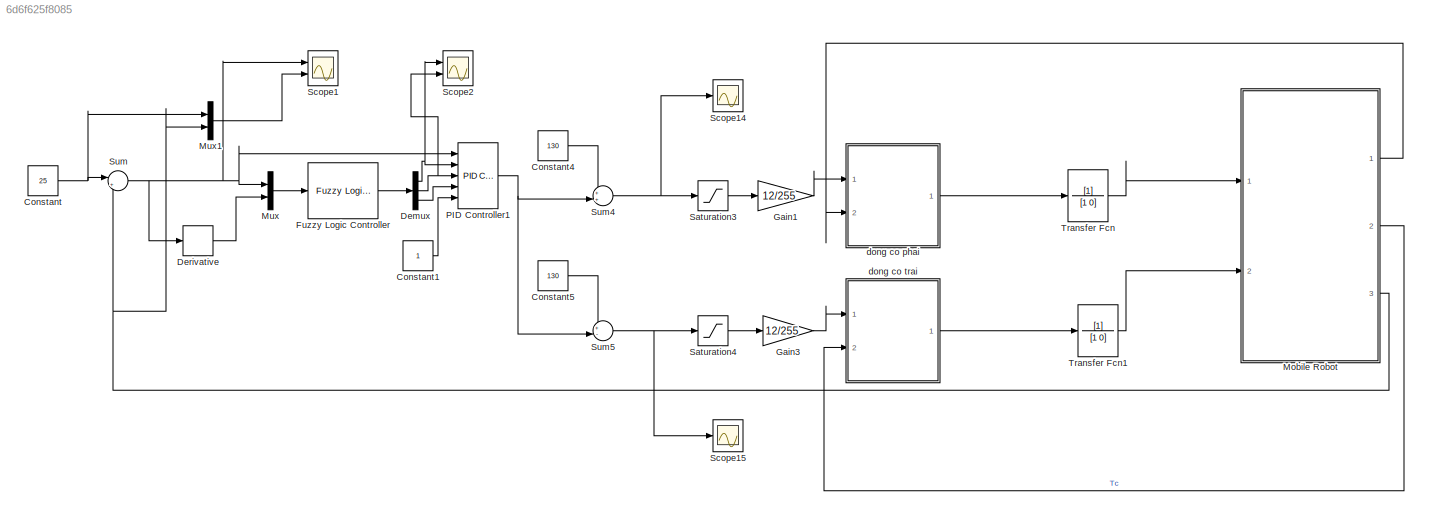
MODEL slx_6d6f625f8085
KIND model
CONFIG AbsTol = auto
CONFIG EnableMultiTasking = off
CONFIG FixedStep = auto
CONFIG MaxStep = auto
CONFIG MinStep = auto
CONFIG RelTol = 1e-3
CONFIG SampleTimeConstraint = Unconstrained
CONFIG Solver = VariableStepAuto
CONFIG SolverName = VariableStepAuto
CONFIG StartTime = 0.0
CONFIG StopTime = 10
BLOCK [Constant] Constant
  Value = 25
BLOCK [Constant] Constant1
BLOCK [Constant] Constant4
  Value = 130
BLOCK [Constant] Constant5
  Value = 130
BLOCK [Demux] Demux
  DisplayOption = bar
  Outputs = 3
  Ports = [1, 3]
BLOCK [Derivative] Derivative
BLOCK [Reference] Fuzzy Logic Controller  REF=fuzblock/Fuzzy Logic   (lib defined in mdl_858b3b3e7478)
Controller
  Ports = [1, 1]
  SourceBlock = fuzblock/Fuzzy Logic \nController
  SourceProductBaseCode = FL
  SourceProductName = Fuzzy Logic Toolbox
  SourceType = Fuzzy Inference System
BLOCK [Gain] Gain1
  Gain = 12/255
  OutDataTypeStr = Inherit: Inherit via internal rule
  ParamDataTypeStr = Inherit: Inherit via internal rule
  SaturateOnIntegerOverflow = off
BLOCK [Gain] Gain3
  Gain = 12/255
  OutDataTypeStr = Inherit: Inherit via internal rule
  ParamDataTypeStr = Inherit: Inherit via internal rule
  SaturateOnIntegerOverflow = off
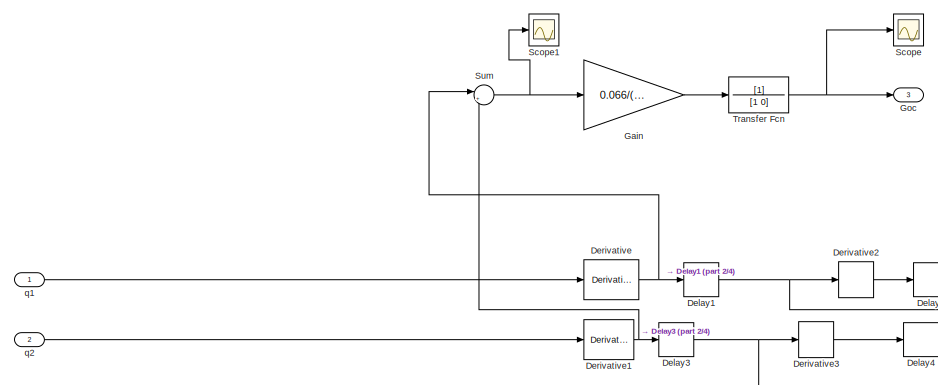
[diagram: Mobile Robot - part 1/4, top left region]
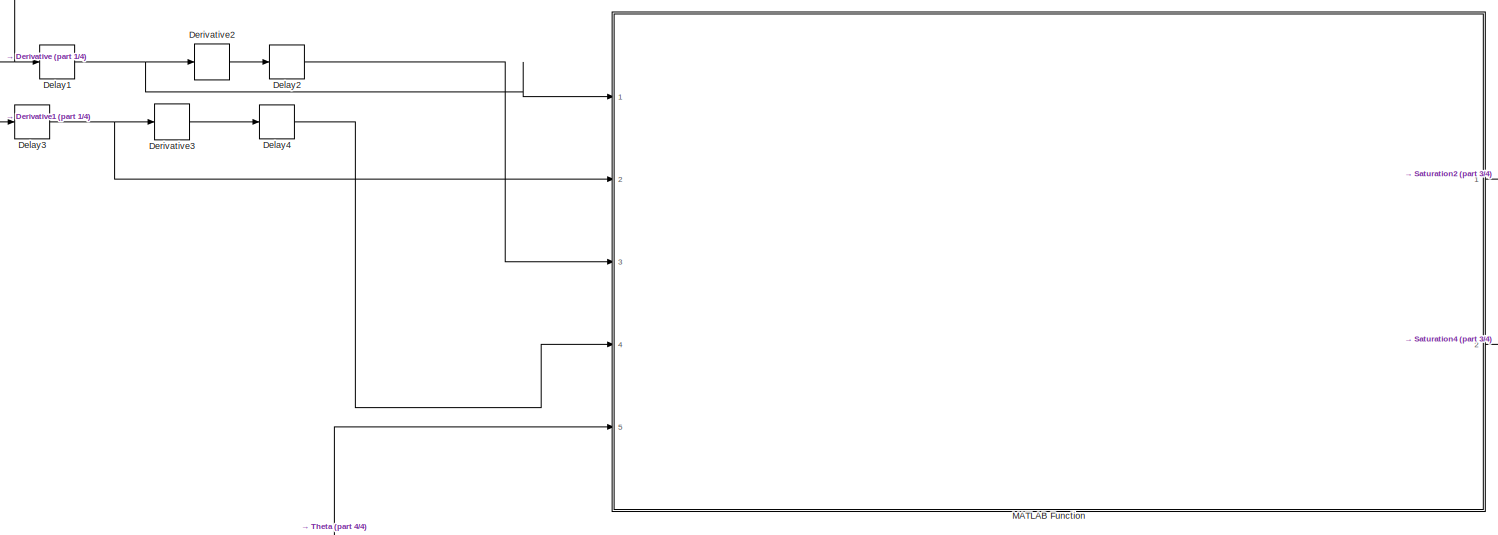
[diagram: Mobile Robot - part 2/4, central region]
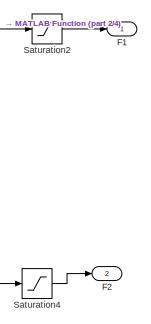
[diagram: Mobile Robot - part 3/4, middle right region]
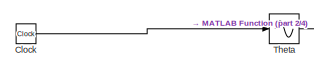
[diagram: Mobile Robot - part 4/4, bottom left region]
BLOCK [SubSystem] Mobile Robot
  Ports = [2, 3]
  RequestExecContextInheritance = off
BLOCK [Clock] Mobile Robot/Clock
  Decimation = 5
BLOCK [Delay] Mobile Robot/Delay1
  InputPortMap = u0
  Ports = [1, 1]
  SampleTime = 0.001
BLOCK [Delay] Mobile Robot/Delay2
  InputPortMap = u0
  Ports = [1, 1]
  SampleTime = 0.001
BLOCK [Delay] Mobile Robot/Delay3
  InputPortMap = u0
  Ports = [1, 1]
  SampleTime = 0.001
BLOCK [Delay] Mobile Robot/Delay4
  InputPortMap = u0
  Ports = [1, 1]
  SampleTime = 0.001
BLOCK [Derivative] Mobile Robot/Derivative
BLOCK [Derivative] Mobile Robot/Derivative1
BLOCK [Derivative] Mobile Robot/Derivative2
BLOCK [Derivative] Mobile Robot/Derivative3
BLOCK [Outport] Mobile Robot/F1
  IconDisplay = Port number
BLOCK [Outport] Mobile Robot/F2
  IconDisplay = Port number
  Port = 2
BLOCK [Gain] Mobile Robot/Gain
  Gain = 0.066/(2*0.12)
  OutDataTypeStr = Inherit: Inherit via internal rule
  ParamDataTypeStr = Inherit: Inherit via internal rule
  SaturateOnIntegerOverflow = off
BLOCK [Outport] Mobile Robot/Goc 
  IconDisplay = Port number
  Port = 3
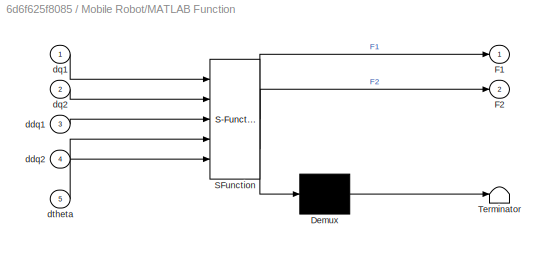
BLOCK [SubSystem] Mobile Robot/MATLAB Function
  ErrorFcn = Stateflow.Translate.translate
  PermitHierarchicalResolution = ExplicitOnly
  Ports = [5, 2]
  RequestExecContextInheritance = off
  SFBlockType = MATLAB Function
  TreatAsAtomicUnit = on
BLOCK [Demux] Mobile Robot/MATLAB Function/ Demux 
  Outputs = 1
  Ports = [1, 1]
BLOCK [S-Function] Mobile Robot/MATLAB Function/ SFunction 
  EnableBusSupport = on
  FunctionName = sf_sfun
  PortCounts = [5 3]
  Ports = [5, 3]
  SFcnIsStateOwnerBlock = off
  SFunctionDeploymentMode = off
  Tag = Stateflow S-Function fuzzy_PID_2 11
BLOCK [Terminator] Mobile Robot/MATLAB Function/ Terminator 
BLOCK [Outport] Mobile Robot/MATLAB Function/F1
  IconDisplay = Port number
BLOCK [Outport] Mobile Robot/MATLAB Function/F2
  IconDisplay = Port number
  Port = 2
BLOCK [Inport] Mobile Robot/MATLAB Function/ddq1
  IconDisplay = Port number
  Port = 3
BLOCK [Inport] Mobile Robot/MATLAB Function/ddq2
  IconDisplay = Port number
  Port = 4
BLOCK [Inport] Mobile Robot/MATLAB Function/dq1
  IconDisplay = Port number
BLOCK [Inport] Mobile Robot/MATLAB Function/dq2
  IconDisplay = Port number
  Port = 2
BLOCK [Inport] Mobile Robot/MATLAB Function/dtheta
  IconDisplay = Port number
  Port = 5
BLOCK [Saturate] Mobile Robot/Saturation2
  InputPortMap = u0
  Ports = [1, 1]
BLOCK [Saturate] Mobile Robot/Saturation4
  InputPortMap = u0
  Ports = [1, 1]
BLOCK [Scope] Mobile Robot/Scope
  Floating = off
  NumInputPorts = 1
  Ports = [1]
  ScopeSpecificationString = Simulink.scopes.TimeScopeBlockCfg('CurrentConfiguration', extmgr.ConfigurationSet(extmgr.Configuration('Core','General UI',true),extmgr.Configuration('Core','Source UI',true),extmgr.Configuration('Sources','WiredSimulink',true,'DataLoggingVariableName','ScopeData2'),extmgr.Configuration('Visuals','Time Domain',true,'SerializedDisplays',{struct('MinYLimReal','-2.51471','MaxYLimReal','22.63242','YLa...<+1448ch>
BLOCK [Scope] Mobile Robot/Scope1
  Floating = off
  NumInputPorts = 1
  Ports = [1]
  ScopeSpecificationString = Simulink.scopes.TimeScopeBlockCfg('CurrentConfiguration', extmgr.ConfigurationSet(extmgr.Configuration('Core','General UI',true),extmgr.Configuration('Core','Source UI',true),extmgr.Configuration('Sources','WiredSimulink',true),extmgr.Configuration('Visuals','Time Domain',true,'SerializedDisplays',{struct('MinYLimReal','-1111.04','MaxYLimReal','1261.22667','YLabelReal','','MinYLimMag','  0.00000',...<+1371ch>
BLOCK [Sum] Mobile Robot/Sum
  IconShape = round
  InputSameDT = off
  Inputs = |+-
  OutDataTypeStr = Inherit: Inherit via internal rule
  Ports = [2, 1]
  SaturateOnIntegerOverflow = off
BLOCK [Sin] Mobile Robot/Theta
  Frequency = 60
  Phase = 30
  Ports = [1, 1]
  SampleTime = 0
  TimeSource = Use external signal
BLOCK [TransferFcn] Mobile Robot/Transfer Fcn
  Denominator = [1 0]
BLOCK [Inport] Mobile Robot/q1
  IconDisplay = Port number
BLOCK [Inport] Mobile Robot/q2
  IconDisplay = Port number
  Port = 2
BLOCK [Mux] Mux
  DisplayOption = bar
  Inputs = 2
  Ports = [2, 1]
BLOCK [Mux] Mux1
  DisplayOption = bar
  Inputs = 2
  Ports = [2, 1]
BLOCK [Reference] PID Controller1  REF=simulink/Continuous/PID Controller
  Ports = [5, 1]
  SourceBlock = simulink/Continuous/PID Controller
  SourceProductBaseCode = SL
  SourceProductName = Simulink
  SourceType = PID 1dof
BLOCK [Saturate] Saturation3
  InputPortMap = u0
  LowerLimit = 0
  Ports = [1, 1]
  UpperLimit = 230
BLOCK [Saturate] Saturation4
  InputPortMap = u0
  LowerLimit = 0
  Ports = [1, 1]
  UpperLimit = 230
BLOCK [Scope] Scope1
  Floating = off
  NumInputPorts = 2
  Ports = [2]
  ScopeSpecificationString = Simulink.scopes.TimeScopeBlockCfg('CurrentConfiguration', extmgr.ConfigurationSet(extmgr.Configuration('Core','General UI',true,'FigureColor',[1 1 1]),extmgr.Configuration('Core','Source UI',true),extmgr.Configuration('Sources','WiredSimulink',true,'DataLoggingVariableName','ScopeData1'),extmgr.Configuration('Visuals','Time Domain',true,'SerializedDisplays',{struct('MinYLimReal','24.94973','MaxYLi...<+3028ch>
BLOCK [Scope] Scope14
  Floating = off
  NumInputPorts = 1
  Ports = [1]
  ScopeSpecificationString = Simulink.scopes.TimeScopeBlockCfg('CurrentConfiguration', extmgr.ConfigurationSet(extmgr.Configuration('Core','General UI',true),extmgr.Configuration('Core','Source UI',true),extmgr.Configuration('Sources','WiredSimulink',true,'DataLoggingVariableName','ScopeData1'),extmgr.Configuration('Visuals','Time Domain',true,'SerializedDisplays',{struct('MinYLimReal','-610.91369','MaxYLimReal','1384.54597',...<+1455ch>
BLOCK [Scope] Scope15
  Floating = off
  NumInputPorts = 1
  Ports = [1]
  ScopeSpecificationString = Simulink.scopes.TimeScopeBlockCfg('CurrentConfiguration', extmgr.ConfigurationSet(extmgr.Configuration('Core','General UI',true),extmgr.Configuration('Core','Source UI',true),extmgr.Configuration('Sources','WiredSimulink',true,'DataLoggingVariableName','ScopeData2'),extmgr.Configuration('Visuals','Time Domain',true,'SerializedDisplays',{struct('MinYLimReal','-1120.31859','MaxYLimReal','1032.86731'...<+1459ch>
BLOCK [Scope] Scope2
  Floating = off
  NumInputPorts = 2
  Ports = [2]
  ScopeSpecificationString = Simulink.scopes.TimeScopeBlockCfg('CurrentConfiguration', extmgr.ConfigurationSet(extmgr.Configuration('Core','General UI',true,'FigureColor',[1 1 1]),extmgr.Configuration('Core','Source UI',true),extmgr.Configuration('Sources','WiredSimulink',true,'DataLoggingVariableName','ScopeData1'),extmgr.Configuration('Visuals','Time Domain',true,'SerializedDisplays',{struct('MinYLimReal','0.49038','MaxYLim...<+3009ch>
BLOCK [Sum] Sum
  IconShape = round
  InputSameDT = off
  Inputs = |+-
  OutDataTypeStr = Inherit: Inherit via internal rule
  Ports = [2, 1]
  SaturateOnIntegerOverflow = off
BLOCK [Sum] Sum4
  IconShape = round
  InputSameDT = off
  Inputs = ++|
  OutDataTypeStr = Inherit: Inherit via internal rule
  Ports = [2, 1]
  SaturateOnIntegerOverflow = off
BLOCK [Sum] Sum5
  IconShape = round
  InputSameDT = off
  Inputs = +-|
  OutDataTypeStr = Inherit: Inherit via internal rule
  Ports = [2, 1]
  SaturateOnIntegerOverflow = off
BLOCK [TransferFcn] Transfer Fcn
  Denominator = [1 0]
BLOCK [TransferFcn] Transfer Fcn1
  Denominator = [1 0]
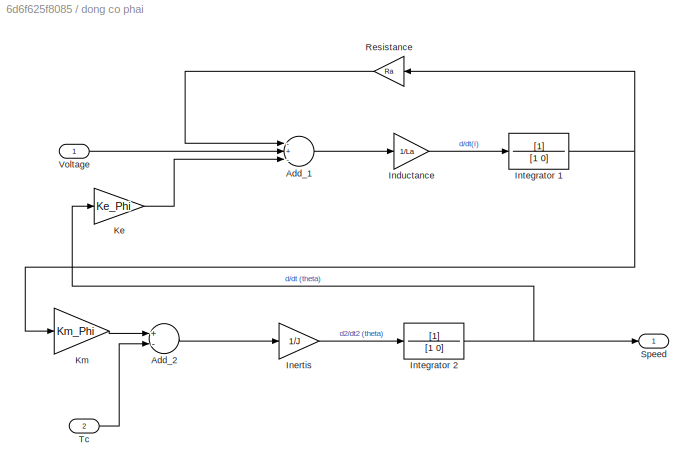
BLOCK [SubSystem] dong co phai 
  Ports = [2, 1]
  RequestExecContextInheritance = off
BLOCK [Sum] dong co phai /Add_1 
  InputSameDT = off
  Inputs = -+-
  OutDataTypeStr = Inherit: Inherit via internal rule
  Ports = [3, 1]
  SaturateOnIntegerOverflow = off
BLOCK [Sum] dong co phai /Add_2 
  InputSameDT = off
  Inputs = +-
  OutDataTypeStr = Inherit: Inherit via internal rule
  Ports = [2, 1]
  SaturateOnIntegerOverflow = off
BLOCK [Gain] dong co phai /Inductance 
  Gain = 1/La
  OutDataTypeStr = Inherit: Inherit via internal rule
  ParamDataTypeStr = Inherit: Inherit via internal rule
  SaturateOnIntegerOverflow = off
BLOCK [Gain] dong co phai /Inertis 
  Gain = 1/J
  OutDataTypeStr = Inherit: Inherit via internal rule
  ParamDataTypeStr = Inherit: Inherit via internal rule
  SaturateOnIntegerOverflow = off
BLOCK [TransferFcn] dong co phai /Integrator 1 
  Denominator = [1 0]
BLOCK [TransferFcn] dong co phai /Integrator 2 
  Denominator = [1 0]
BLOCK [Gain] dong co phai /Ke 
  Gain = Ke_Phi
  OutDataTypeStr = Inherit: Inherit via internal rule
  ParamDataTypeStr = Inherit: Inherit via internal rule
  SaturateOnIntegerOverflow = off
BLOCK [Gain] dong co phai /Km 
  Gain = Km_Phi
  OutDataTypeStr = Inherit: Inherit via internal rule
  ParamDataTypeStr = Inherit: Inherit via internal rule
  SaturateOnIntegerOverflow = off
BLOCK [Gain] dong co phai /Resistance
  Gain = Ra
  OutDataTypeStr = Inherit: Inherit via internal rule
  ParamDataTypeStr = Inherit: Inherit via internal rule
  SaturateOnIntegerOverflow = off
BLOCK [Outport] dong co phai /Speed 
  IconDisplay = Port number
BLOCK [Inport] dong co phai /Tc 
  IconDisplay = Port number
  Port = 2
BLOCK [Inport] dong co phai /Voltage 
  IconDisplay = Port number
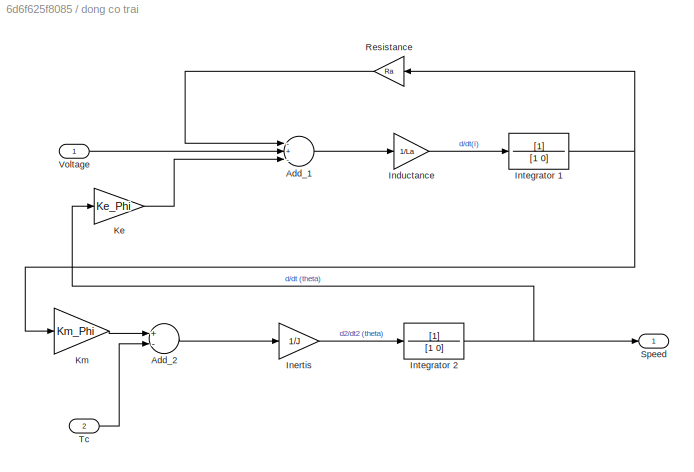
BLOCK [SubSystem] dong co trai 
  Ports = [2, 1]
  RequestExecContextInheritance = off
BLOCK [Sum] dong co trai /Add_1 
  InputSameDT = off
  Inputs = -+-
  OutDataTypeStr = Inherit: Inherit via internal rule
  Ports = [3, 1]
  SaturateOnIntegerOverflow = off
BLOCK [Sum] dong co trai /Add_2 
  InputSameDT = off
  Inputs = +-
  OutDataTypeStr = Inherit: Inherit via internal rule
  Ports = [2, 1]
  SaturateOnIntegerOverflow = off
BLOCK [Gain] dong co trai /Inductance 
  Gain = 1/La
  OutDataTypeStr = Inherit: Inherit via internal rule
  ParamDataTypeStr = Inherit: Inherit via internal rule
  SaturateOnIntegerOverflow = off
BLOCK [Gain] dong co trai /Inertis 
  Gain = 1/J
  OutDataTypeStr = Inherit: Inherit via internal rule
  ParamDataTypeStr = Inherit: Inherit via internal rule
  SaturateOnIntegerOverflow = off
BLOCK [TransferFcn] dong co trai /Integrator 1 
  Denominator = [1 0]
BLOCK [TransferFcn] dong co trai /Integrator 2 
  Denominator = [1 0]
BLOCK [Gain] dong co trai /Ke 
  Gain = Ke_Phi
  OutDataTypeStr = Inherit: Inherit via internal rule
  ParamDataTypeStr = Inherit: Inherit via internal rule
  SaturateOnIntegerOverflow = off
BLOCK [Gain] dong co trai /Km 
  Gain = Km_Phi
  OutDataTypeStr = Inherit: Inherit via internal rule
  ParamDataTypeStr = Inherit: Inherit via internal rule
  SaturateOnIntegerOverflow = off
BLOCK [Gain] dong co trai /Resistance
  Gain = Ra
  OutDataTypeStr = Inherit: Inherit via internal rule
  ParamDataTypeStr = Inherit: Inherit via internal rule
  SaturateOnIntegerOverflow = off
BLOCK [Outport] dong co trai /Speed 
  IconDisplay = Port number
BLOCK [Inport] dong co trai /Tc 
  IconDisplay = Port number
  Port = 2
BLOCK [Inport] dong co trai /Voltage 
  IconDisplay = Port number
LINE Constant1:1 -> PID Controller1:5
LINE Constant4:1 -> Sum4:1
LINE Constant5:1 -> Sum5:1
NET Constant:1 -> Mux1:1, Sum:1
NET Demux:1 -> PID Controller1:2, Scope2:1
NET Demux:2 -> PID Controller1:3, Scope2:2
LINE Demux:3 -> PID Controller1:4
LINE Derivative:1 -> Mux:2
LINE Fuzzy Logic Controller:1 -> Demux:1
LINE Gain1:1 -> dong co phai :1
LINE Gain3:1 -> dong co trai :1
LINE Mobile Robot/Clock:1 -> Mobile Robot/Theta:1
NET Mobile Robot/Delay1:1 -> Mobile Robot/Derivative2:1, Mobile Robot/MATLAB Function:1
LINE Mobile Robot/Delay2:1 -> Mobile Robot/MATLAB Function:3
NET Mobile Robot/Delay3:1 -> Mobile Robot/Derivative3:1, Mobile Robot/MATLAB Function:2
LINE Mobile Robot/Delay4:1 -> Mobile Robot/MATLAB Function:4
NET Mobile Robot/Derivative1:1 -> Mobile Robot/Delay3:1, Mobile Robot/Sum:2
LINE Mobile Robot/Derivative2:1 -> Mobile Robot/Delay2:1
LINE Mobile Robot/Derivative3:1 -> Mobile Robot/Delay4:1
NET Mobile Robot/Derivative:1 -> Mobile Robot/Delay1:1, Mobile Robot/Sum:1
LINE Mobile Robot/Gain:1 -> Mobile Robot/Transfer Fcn:1
LINE Mobile Robot/MATLAB Function:1 -> Mobile Robot/Saturation2:1
LINE Mobile Robot/MATLAB Function:2 -> Mobile Robot/Saturation4:1
LINE Mobile Robot/Saturation2:1 -> Mobile Robot/F1:1
LINE Mobile Robot/Saturation4:1 -> Mobile Robot/F2:1
NET Mobile Robot/Sum:1 -> Mobile Robot/Gain:1, Mobile Robot/Scope1:1
LINE Mobile Robot/Theta:1 -> Mobile Robot/MATLAB Function:5
NET Mobile Robot/Transfer Fcn:1 -> Mobile Robot/Goc :1, Mobile Robot/Scope:1
LINE Mobile Robot/q1:1 -> Mobile Robot/Derivative:1
LINE Mobile Robot/q2:1 -> Mobile Robot/Derivative1:1
LINE Mobile Robot:1 -> dong co phai :2
LINE Mobile Robot:2 -> dong co trai :2
NET Mobile Robot:3 -> Mux1:2, Sum:2
LINE Mux1:1 -> Scope1:2
LINE Mux:1 -> Fuzzy Logic Controller:1
NET PID Controller1:1 -> Sum4:2, Sum5:2
LINE Saturation3:1 -> Gain1:1
LINE Saturation4:1 -> Gain3:1
NET Sum4:1 -> Saturation3:1, Scope14:1
NET Sum5:1 -> Saturation4:1, Scope15:1
NET Sum:1 -> Derivative:1, Mux:1, PID Controller1:1, Scope1:1
LINE Transfer Fcn1:1 -> Mobile Robot:2
LINE Transfer Fcn:1 -> Mobile Robot:1
LINE dong co phai /Add_1 :1 -> dong co phai /Inductance :1
LINE dong co phai /Add_2 :1 -> dong co phai /Inertis :1
LINE dong co phai /Inductance :1 -> dong co phai /Integrator 1 :1
LINE dong co phai /Inertis :1 -> dong co phai /Integrator 2 :1
NET dong co phai /Integrator 1 :1 -> dong co phai /Km :1, dong co phai /Resistance:1
NET dong co phai /Integrator 2 :1 -> dong co phai /Ke :1, dong co phai /Speed :1
LINE dong co phai /Ke :1 -> dong co phai /Add_1 :3
LINE dong co phai /Km :1 -> dong co phai /Add_2 :1
LINE dong co phai /Resistance:1 -> dong co phai /Add_1 :1
LINE dong co phai /Tc :1 -> dong co phai /Add_2 :2
LINE dong co phai /Voltage :1 -> dong co phai /Add_1 :2
LINE dong co phai :1 -> Transfer Fcn:1
LINE dong co trai /Add_1 :1 -> dong co trai /Inductance :1
LINE dong co trai /Add_2 :1 -> dong co trai /Inertis :1
LINE dong co trai /Inductance :1 -> dong co trai /Integrator 1 :1
LINE dong co trai /Inertis :1 -> dong co trai /Integrator 2 :1
NET dong co trai /Integrator 1 :1 -> dong co trai /Km :1, dong co trai /Resistance:1
NET dong co trai /Integrator 2 :1 -> dong co trai /Ke :1, dong co trai /Speed :1
LINE dong co trai /Ke :1 -> dong co trai /Add_1 :3
LINE dong co trai /Km :1 -> dong co trai /Add_2 :1
LINE dong co trai /Resistance:1 -> dong co trai /Add_1 :1
LINE dong co trai /Tc :1 -> dong co trai /Add_2 :2
LINE dong co trai /Voltage :1 -> dong co trai /Add_1 :2
LINE dong co trai :1 -> Transfer Fcn1:1
note: NET lines group one-source signal fan-out (src -> all destinations, sorted); 1:1 wires keep LINE
CHART Mobile Robot/MATLAB Function states=1 transitions=1
  STATE_LABEL 'eML_blk_kernel()'
  STATE_LABEL 'SCRIPT:\nfunction [F1,F2]= fcn(dq1,dq2,ddq1,ddq2,dtheta)\nIW=1;\nR=0.5;\nmc=5;\nmw=0.2;\nL=10;\nd=5;\nIc=2;\nIm=1;\n\ndq=[dq1;dq2];\nddq=[ddq1;ddq2];\nm=mc+2*mw;\nI=Ic+mc*d^2+2*mw*L^2+2*Im;\n\nM=[IW+(R^2)*(m*L^2+I)/(4*L),(R^2)*(m*L^2-I)/(4*L);\n    (R^2)*(m*L^2-I)/(4*L) ,IW+(R^2)*(m*L^2+I)/(4*L)];\n    \nV=[0, (R^2)*(mc*dtheta)/(2*L);\n  -(R^2)*(mc*dtheta)/(2*L),0];\n\nF=M*ddq+V*dq;\nF1=F(1,1);\nF2=F(2,1);\n   \n   \n    \n ...<+5ch>'
